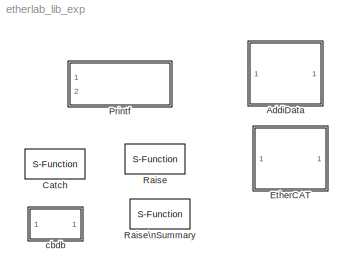
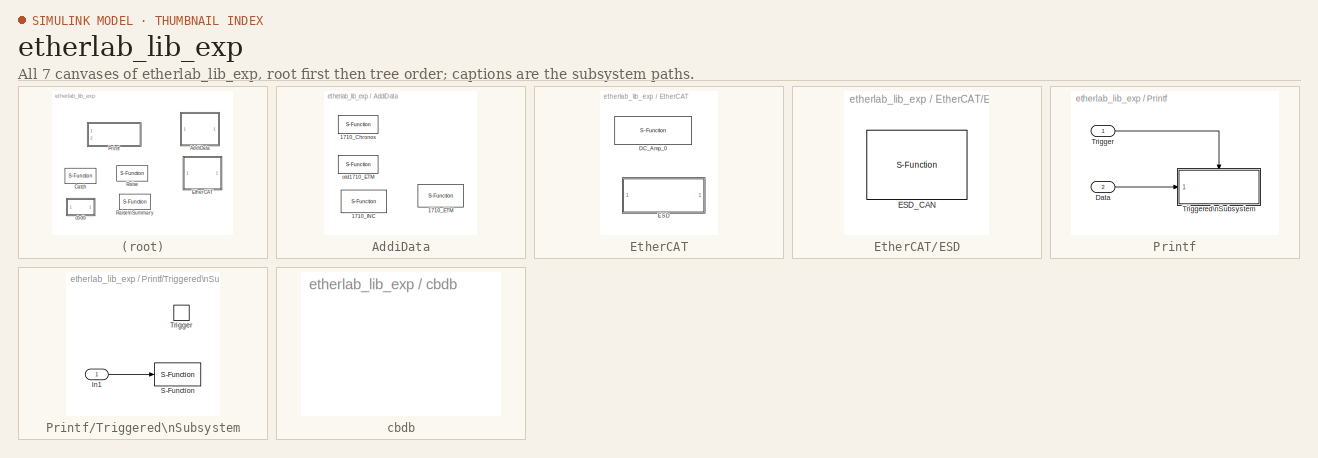
[diagram: thumbnail index - all 7 canvases of the model, root first then tree order]
MODEL etherlab_lib_exp
KIND library
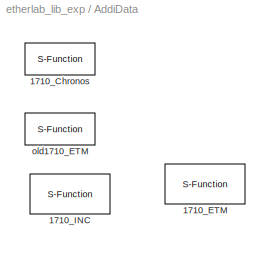
BLOCK [SubSystem] AddiData
  FunctionWithSeparateData = off
  MinAlgLoopOccurrences = off
  Ports = []
  RTWSystemCode = Auto
BLOCK [S-Function] AddiData/1710_Chronos
  FunctionName = ad1710_chronos
  MaskCallbackString = ||||||
  MaskDisplay = fprintf('1710 Chrono\\nB:%i M/d:%i',\nb_BoardHandle,b_ModuleNumber);
  MaskEnableString = on,on,on,on,on,on,on
  MaskIconFrame = on
  MaskIconOpaque = on
  MaskIconRotate = none
  MaskIconUnits = autoscale
  MaskPromptString = Board Handle|Module Number|Chrono Mode|PCI Input Clock|Time Unit|Timeout|Timeout Unit
  MaskStyleString = edit,popup(0|1|2|3),popup(0|1|2|3|4|5|6|7),popup(30MHz|33MHz|40MHz),popup(Nanoseconds|Microseconds|Milliseconds|Seconds|Minutes),edit,popup(Nanoseconds|Micoseconds|Milliseconds|Seconds|Minutes)
  MaskTabNameString = ,,,,,,
  MaskToolTipString = on,on,on,on,on,on,on
  MaskTunableValueString = off,off,off,off,off,off,off
  MaskValueString = 0|0|0|30MHz|Microseconds|0|Micoseconds
  MaskVarAliasString = ,,,,,,
  MaskVariables = b_BoardHandle=@1;b_ModuleNumber=@2;b_ChronoMode=@3;b_PCIInputClock=@4;b_TimeUnit=@5;ul_TimeOut=@6;b_TimeoutUnit=@7;
  MaskVisibilityString = on,on,on,on,on,on,on
  Parameters = b_BoardHandle,b_ModuleNumber,b_ChronoMode,b_PCIInputClock,b_TimeUnit,ul_TimeOut,b_TimeoutUnit
  Ports = [0, 1]
BLOCK [S-Function] AddiData/1710_ETM
  FunctionName = xPCI1710_etm
  MaskCallbackString = |||||||
  MaskDescription = This block implements the Edge Triggered Timer Mode for the 1710 Addi Data timer card. \n
  MaskDisplay = fprintf('xPCI1710 ETM\\nPCI: %s\\nModule: %i',\ndevice,module-1);
  MaskEnableString = on,on,on,on,on,on,on,on
  MaskIconFrame = on
  MaskIconOpaque = on
  MaskIconRotate = none
  MaskIconUnits = autoscale
  MaskInitialization = device = test_var(device);
  MaskPromptString = PCI Device|Module Number|Clock Source|Clock Divisor|Output Data Type |Output Full Scale|Output Offset|Sampling Time (-1 inherited)
  MaskStyleString = edit,popup(0|1|2|3),popup(Internal 40MHz|PCI Bus 33/30Mhz),edit,popup(double|single|int8|uint8|int16|uint16|int32|uint32|boolean|Inherited via back propagation),edit,edit,edit
  MaskTabNameString = ,,,,,,,
  MaskToolTipString = on,on,on,on,on,on,on,on
  MaskTunableValueString = off,off,off,off,off,on,on,off
  MaskType = Addi Data 1710 ETM
  MaskValueString = 01:0A|0|Internal 40MHz|1|double|0|0|0
  MaskVarAliasString = ,,,,,,,
  MaskVariables = device=&1;module=@2;clock_src=@3;divisor=@4;op_type=@5;scale=@6;offset=@7;tsample=@8;
  MaskVisibilityString = on,on,on,on,on,on,on,on
  Parameters = device,module,clock_src,divisor,op_type,tsample
  Ports = [0, 3]
BLOCK [S-Function] AddiData/1710_INC
  FunctionName = xPCI1710_inc
  MaskCallbackString = ||||||
  MaskDescription = This block implements the Incremental Counter Mode for the 1710 Addi Data timer card. \n
  MaskDisplay = fprintf('xPCI1710 INC\\nPCI: %s\\nModule: %i',\ndevice,module-1);
  MaskEnableString = on,on,on,on,on,on,on
  MaskIconFrame = on
  MaskIconOpaque = on
  MaskIconRotate = none
  MaskIconUnits = autoscale
  MaskInitialization = device = test_var(device);
  MaskPromptString = PCI Device|Module Number|Mode |Counter Width |Output Data Type |Preset Input|Sampling Time (-1 inherited)
  MaskStyleString = edit,popup(0|1|2|3),popup(Quadruple|Double|Simple|Direct),popup(32-Bit|16-Bit),popup(double|single|int8|uint8|int16|uint16|int32|uint32|boolean|Inherited via back propagation),checkbox,edit
  MaskTabNameString = ,,,,,,
  MaskToolTipString = on,on,on,on,on,on,on
  MaskTunableValueString = off,off,off,off,off,off,off
  MaskType = Addi Data 1710 INC
  MaskValueString = 03:0E|0|Quadruple|32-Bit|double|off|0
  MaskVarAliasString = ,,,,,,
  MaskVariables = device=&1;module=@2;mode=@3;width=@4;op_type=@5;preset=@6;tsample=@7;
  MaskVisibilityString = on,on,on,on,on,on,on
  Parameters = device,module,mode,width,op_type,preset,tsample
  Ports = [0, 1]
BLOCK [S-Function] AddiData/old1710_ETM
  FunctionName = ad1710_etm
  MaskCallbackString = ||||
  MaskDescription = This block implements the Edge Triggered Mode for the 1710 Addi Data timer card. \n\nBoth counters are exported as a vector.
  MaskDisplay = fprintf('1710 ETM\\nB:%i M/d:%i',\nb_BoardHandle,b_ModuleNumber);
  MaskEnableString = on,on,on,on,on
  MaskIconFrame = on
  MaskIconOpaque = on
  MaskIconRotate = none
  MaskIconUnits = autoscale
  MaskPromptString = Board Handle|Module Number|Clock Selection|Timing Unit|Time Base
  MaskStyleString = edit,popup(0|1|2|3),popup(PCI 30MHz|PCI 33MHz|Internal 40MHz),popup(Nanoseconds|Microseconds|Milliseconds),edit
  MaskTabNameString = ,,,,
  MaskToolTipString = on,on,on,on,on
  MaskTunableValueString = off,off,off,off,off
  MaskType = Addi Data 1710 ETM
  MaskValueString = 0|0|PCI 30MHz|Microseconds|0
  MaskVarAliasString = ,,,,
  MaskVariables = b_BoardHandle=@1;b_ModuleNumber=@2;b_ClockSelection=@3;b_TimingUnit=@4;ul_Timing=@5;
  MaskVisibilityString = on,on,on,on,on
  Parameters = b_BoardHandle,b_ModuleNumber,b_ClockSelection,b_TimingUnit,ul_Timing
  Ports = [0, 1]
BLOCK [S-Function] Catch
  FunctionName = catch
  InitFcn = catch_check(gcb,'CheckIds');
  MaskCallbackString = catch_check(gcb,'CheckIds');|||||
  MaskDisplay = fprintf('%s',ErrId);
  MaskEnableString = on,on,on,on,on,on
  MaskIconFrame = on
  MaskIconOpaque = on
  MaskIconRotate = none
  MaskIconUnits = autoscale
  MaskPromptString = Error Identifier|Output Data Type Mode |Sample Time (-1 inherited)|Width|Source Paths (Info only)|Source Count
  MaskStyleString = edit,popup(double|single|int8|uint8|int16|uint16|int32|uint32|boolean|Inherit via back propagation),edit,edit,edit,edit
  MaskTabNameString = ,,,,,
  MaskToolTipString = on,on,on,on,on,on
  MaskTunableValueString = off,off,off,off,off,off
  MaskValueString = E10|boolean|0|0|0|0
  MaskVarAliasString = ,,,,,
  MaskVariables = ErrId=&1;dtype=@2;TSample=@3;Width=@4;SrcPath=&5;SrcCount=@6;
  MaskVisibilityString = on,on,on,on,on,off
  Parameters = ErrId,dtype,Width,TSample
  Ports = [0, 1]
BLOCK [SubSystem] EtherCAT
  FunctionWithSeparateData = off
  MinAlgLoopOccurrences = off
  Ports = []
  RTWSystemCode = Auto
BLOCK [S-Function] EtherCAT/DC_Amp_0
  FunctionName = ec_slave2
  MaskCallbackString = ||beckhoff_el73x2('model');|beckhoff_el73x2('dc');||||||||||||||||||||||||||||||||||
  MaskDescription = Beckhoff 2 Channel DC Amplifier EL73x2
  MaskDisplay = fprintf('%s\\n%s \\nM:%s Idx:%s',...\n    model,func,masterStr,positionStr)\n
  MaskEnableString = on,on,on,on,off,on,on,on,on,on,on,on,on,on,on,on,on,on,on,on,on,on,on,on,on,on,on,on,on,on,on,on,on,on,on,on,on,off
  MaskHelp = This block implements the EtherCAT 2 Channel DC Amplifier Terminal EL73x2.\n<p/>\nThe block input and output depends generally on the configured functionality. Please read the Terminal documentation.\n<p/>\nThe following Terminals are supported:\n<center>\n<table width=\"80%\">\n<tr><td>EL7332</td><td></td></tr>\n</table>\n</center>\n<p/>\n\n\n\n<h4>Inputs:</h4>\nEvery Block Input is a 2-element V...<+4855ch>
  MaskIconFrame = on
  MaskIconOpaque = on
  MaskIconRotate = none
  MaskIconUnits = autoscale
  MaskInitialization = masterStr = '';\npositionStr = '';\n\n[Address masterStr positionStr] = getEtherCATAddress(gcb,master,index);\n\nselection = beckhoff_el73x2('getmodel',model);\nif isempty(selection)\n    return;\nend\n\nfunc = selection{3};\n\ndevice = beckhoff_el73x2('loaddescription',selection);\nif isempty(device)\n   return; \nend\n\n\n%Prepare S-Funtion structure\n\nconfig = beckhoff_el73x2('process',selecti...<+660ch>
  MaskPromptString = Master|Slave Index|Device Model |DC Mode|DC Customized|Max Motor Current in mA|Nominal Motor Currnet in mA|Nominal Motor Voltage in mV|Motor Resistance in 1/100 Ohm|Reduced Current (negative) in mA|Reduced Current (positive) in mA|Controller kp|Controller ki|Enable Voltage Adjustment Channel1|Enable Voltage Adjustment Channel2|Enable Current Adjustment Channel1|Enable Current Adjustment Channel2|O...<+434ch>
  MaskStyleString = edit,edit,popup(EL7332r00100000|EL7332r00110000),popup(FreeRun/SM-Synchron|DC-Synchron|DC-Customized),edit,edit,edit,edit,edit,edit,edit,edit,edit,checkbox,checkbox,checkbox,checkbox,popup(Automatic|Velocity direct|Velocity controller|Position controller),popup(Automatic|Velocity direct|Velocity controller|Position controller),checkbox,checkbox,checkbox,popup(Status word|Coil Voltage|Coil Current)...<+339ch>
  MaskTabNameString = ,,,,,,,,,,,,,,,,,,,,,,,,,,,,,,,,,,,,,
  MaskToolTipString = on,on,on,on,on,on,on,on,on,on,on,on,on,on,on,on,on,on,on,on,on,on,on,on,on,on,on,on,on,on,on,on,on,on,on,on,on,on
  MaskTunableValueString = off,off,off,off,off,off,off,off,off,off,off,off,off,off,off,off,off,off,off,off,off,off,off,off,off,off,off,off,off,off,off,off,off,off,off,off,off,off
  MaskType = EL73x2
  MaskValueString = 0|1|EL7332r00100000|FreeRun/SM-Synchron|[1 hex2dec('700') 0 0 0 0 0 0 0]|[0 0]|[0 0]|[0 0]|[0 0]|[0 0]|[0 0]|[200 200]|[2 2]|off|off|off|off|Velocity direct|Velocity direct|off|off|off|Coil Voltage|Coil Current|Coil Voltage|Coil Current|off|off|off|off|off|Normal Input|Normal Input|Normal Input|Normal Input|-1|0|beckhoff_el73x2
  MaskVarAliasString = ,,,,,,,,,,,,,,,,,,,,,,,,,,,,,,,,,,,,,
  MaskVariables = master=@1;index=@2;model=&3;dcmode=@4;dccustom=@5;max_current=@6;nom_current=@7;nom_volt=@8;resistance=@9;red_current_neg=@10;red_current_pos=@11;kp=@12;ki=@13;voltage_adjust_ch1=@14;voltage_adjust_ch2=@15;current_adjust_ch1=@16;current_adjust_ch2=@17;op_mode_ch1=@18;op_mode_ch2=@19;inv_dir_ch1=@20;inv_dir_ch2=@21;show_info_channels=@22;datafield1_ch1=@23;datafield2_ch1=@24;datafield1_ch2=@25;data...<+231ch>
  MaskVisibilityString = on,on,on,on,on,on,on,on,on,on,on,on,on,on,on,on,on,on,on,on,on,on,on,on,on,on,on,on,on,on,on,on,on,on,on,on,off,off
  Parameters = Address,config.SlaveConfig,config.SdoConfig,config.SoeConfig,config.IO,debug,tsample
  Ports = [4, 4]
BLOCK [SubSystem] EtherCAT/ESD
  FunctionWithSeparateData = off
  MaskDisplay = image(imread('ESD.png'))
  MaskIconFrame = off
  MaskIconOpaque = on
  MaskIconRotate = none
  MaskIconUnits = autoscale
  MinAlgLoopOccurrences = off
  Ports = []
  RTWSystemCode = Auto
BLOCK [S-Function] EtherCAT/ESD/ESD_CAN
  FunctionName = ec_slave2
  MaskCallbackString = |||||||||||
  MaskDescription = ESD EtherCAT \nCAN Gateway
  MaskDisplay = fprintf('ESD EtherCAT\\n%s\\n%s\\nM:%s Idx:%s',...\n    model,func,masterStr,positionStr)\n
  MaskEnableString = on,on,on,on,on,off,on,on,on,on,on,off
  MaskHelp = This block generically implements the ESD EtherCAT CAN Gateway.\n\n<p/>\nThe following Terminals are supported:\n<center>\n<table width=\"80%\">\n<tr><td>CAN</td><td> EtherCAT CAN Gateway</td></tr>\n</table>\n</center>\n<h3> Inputs / Outputs</h3>\n<h4>Inputs</h4>\nThere are two block inputs.\n<p>\nFirst port the static informations (Vector of 3x UINT16)\n<ul>\n<li> TX-Counter: Control send counter...<+2599ch>
  MaskIconFrame = on
  MaskIconOpaque = on
  MaskIconRotate = none
  MaskIconUnits = autoscale
  MaskInitialization = masterStr = '';\npositionStr = '';\n[Address masterStr positionStr] = getEtherCATAddress(gcb,master,index);\n\nselection = esd_cangateway('getmodel',model);\nif isempty(selection)\n    return;\nend\n\nfunc = selection{3};\n\ndevice = esd_cangateway('loaddescription',selection);\nif isempty(device)\n   return; \nend\n\n\n%Prepare S-Funtion structure\n\nconf = esd_cangateway('process',selection,devi...<+65ch>
  MaskPromptString = Master|Slave Index|Device Model |MailboxSize RX|MailboxSize TX|Extended ID|Baudrate in kBit/s|RX Filter IDs|Node ID|Sample Time (-1 for inherited)|Debug|UpdateFcn
  MaskStyleString = edit,edit,popup(CANr00000000),edit,edit,checkbox,popup(1000|800|500|250|125|100|50),edit,edit,edit,edit,edit
  MaskTabNameString = ,,,,,,,,,,,
  MaskToolTipString = on,on,on,on,on,on,on,on,on,on,on,on
  MaskTunableValueString = off,off,off,off,off,off,off,off,off,off,off,off
  MaskType = ESD EtherCAT CAN Gateway
  MaskValueString = 0|1|CANr00000000|1|1|off|500|[]|1|-1|0|esd_cangateway
  MaskVarAliasString = ,,,,,,,,,,,
  MaskVariables = master=@1;index=@2;model=&3;numberrx=@4;numbertx=@5;isext=@6;baudrate=@7;rxfilter=@8;nodeadr=@9;tsample=@10;debug=@11;updatefcn=&12;
  MaskVisibilityString = on,on,on,on,on,on,on,on,on,on,off,off
  Parameters = Address,conf.SlaveConfig,conf.SdoConfig,conf.SoeConfig,conf.IO,debug,tsample
  Ports = [2, 2]
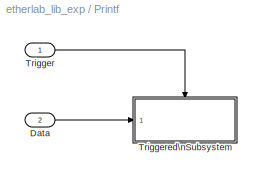
BLOCK [SubSystem] Printf
  FunctionWithSeparateData = off
  MaskEnableString = on
  MaskIconFrame = on
  MaskIconOpaque = on
  MaskIconRotate = none
  MaskIconUnits = autoscale
  MaskPromptString = Format String
  MaskStyleString = edit
  MaskToolTipString = on
  MaskTunableValueString = off
  MaskValueString = 0
  MaskVariables = format=&1;
  MaskVisibilityString = on
  MinAlgLoopOccurrences = off
  Ports = [2]
  RTWSystemCode = Auto
BLOCK [Inport] Printf/Data
  IconDisplay = Port number
  OutDataType = sfix(16)
  OutScaling = 2^0
  Port = 2
BLOCK [Inport] Printf/Trigger
  IconDisplay = Port number
  OutDataType = sfix(16)
  OutScaling = 2^0
BLOCK [SubSystem] Printf/Triggered\nSubsystem
  FunctionWithSeparateData = off
  MinAlgLoopOccurrences = off
  Ports = [1, 0, 0, 1]
  RTWSystemCode = Auto
  TreatAsAtomicUnit = on
BLOCK [Inport] Printf/Triggered\nSubsystem/In1
  IconDisplay = Port number
  OutDataType = sfix(16)
  OutScaling = 2^0
BLOCK [S-Function] Printf/Triggered\nSubsystem/S-Function
  FunctionName = printf
  Parameters = format
  Ports = [1, 1]
BLOCK [TriggerPort] Printf/Triggered\nSubsystem/Trigger
  Ports = []
  StatesWhenEnabling = held
BLOCK [S-Function] Raise
  CopyFcn = raise_check(gcb,'CheckCopy');
  FunctionName = raise
  MaskCallbackString = raise_check(gcb,'CheckId');||||
  MaskDisplay = fprintf('%s',ErrId);
  MaskEnableString = on,on,on,off,on
  MaskIconFrame = on
  MaskIconOpaque = on
  MaskIconRotate = none
  MaskIconUnits = autoscale
  MaskPromptString = Error Identifier|Error String|Sample Time (-1 inherited)|Destination Paths|Destination Count
  MaskStyleString = edit,edit,edit,edit,edit
  MaskTabNameString = ,,,,
  MaskToolTipString = on,on,on,on,on
  MaskTunableValueString = off,off,off,off,off
  MaskValueString = E10|Voltage Too High|-1|0|0
  MaskVarAliasString = ,,,,
  MaskVariables = ErrId=&1;ErrStr=&2;TSample=@3;DstPath=&4;DstCount=@5;
  MaskVisibilityString = on,on,on,off,off
  Parameters = ErrId,ErrStr,TSample
  Ports = [1]
BLOCK [S-Function] Raise\nSummary
  CopyFcn = raise_summary_check(gcb,'CheckCopy');
  FunctionName = raise_summary
  MaskCallbackString = |||
  MaskDisplay = fprintf('%s\\n%s',ErrId,ErrSrc);
  MaskEnableString = on,on,on,off
  MaskIconFrame = on
  MaskIconOpaque = on
  MaskIconRotate = none
  MaskIconUnits = autoscale
  MaskPromptString = Error Identifier|Error String|Error Sources|Destination Paths
  MaskStyleString = edit,edit,edit,edit
  MaskTabNameString = ,,,
  MaskToolTipString = on,on,on,on
  MaskTunableValueString = off,off,off,off
  MaskValueString = E1x|Voltage Too High|E10|0
  MaskVarAliasString = ,,,
  MaskVariables = ErrId=&1;ErrStr=&2;ErrSrc=&3;DstPath=&4;
  MaskVisibilityString = on,on,on,off
  Parameters = ErrId,ErrStr,ErrSrc,DstPath
  Ports = []
BLOCK [SubSystem] cbdb
  ClipboardFcn = if ~strcmp(gcs,'rtai_lib')\ndisplay('ClipboardFcn');  \nend
  CloseFcn = if ~strcmp(gcs,'rtai_lib')\ndisplay('CloseFcn');      \nend
  CopyFcn = if ~strcmp(gcs,'rtai_lib')\ndisplay('CopyFcn');       \nend
  DeleteFcn = if ~strcmp(gcs,'rtai_lib')\ndisplay('DeleteFcn');     \nend
  DestroyFcn = if ~strcmp(gcs,'rtai_lib')\ndisplay('DestroyFcn');    \nend
  FunctionWithSeparateData = off
  InitFcn = if ~strcmp(gcs,'rtai_lib')\ndisplay('InitFcn');       \nend
  LoadFcn = if ~strcmp(gcs,'rtai_lib')\ndisplay('LoadFcn');       \nend
  MaskDisplay = disp('Callback\\nDebugger');
  MaskIconFrame = on
  MaskIconOpaque = on
  MaskIconRotate = none
  MaskIconUnits = autoscale
  MinAlgLoopOccurrences = off
  ModelCloseFcn = if ~strcmp(gcs,'rtai_lib')\ndisplay('ModelCloseFcn'); \nend
  MoveFcn = if ~strcmp(gcs,'rtai_lib')\ndisplay('MoveFcn');       \nend
  NameChangeFcn = if ~strcmp(gcs,'rtai_lib')\ndisplay('NameChangeFcn'); \nend
  OpenFcn = if ~strcmp(gcs,'rtai_lib')\ndisplay('OpenFcn');       \nend
  ParentCloseFcn = if ~strcmp(gcs,'rtai_lib')\ndisplay('ParentCloseFcn');\nend
  Ports = []
  PostSaveFcn = if ~strcmp(gcs,'rtai_lib')\ndisplay('PostSaveFcn');   \nend
  PreSaveFcn = if ~strcmp(gcs,'rtai_lib')\ndisplay('PreSaveFcn');    \nend
  RTWSystemCode = Auto
  StartFcn = if ~strcmp(gcs,'rtai_lib')\ndisplay('StartFcn');      \nend
  StopFcn = if ~strcmp(gcs,'rtai_lib')\ndisplay('StopFcn');       \nend
  UndoDeleteFcn = if ~strcmp(gcs,'rtai_lib')\ndisplay('UndoDeleteFcn'); \nend
LINE Printf/Data:1 -> Printf/Triggered\nSubsystem:1
LINE Printf/Trigger:1 -> Printf/Triggered\nSubsystem:trigger
LINE Printf/Triggered\nSubsystem/In1:1 -> Printf/Triggered\nSubsystem/S-Function:1
